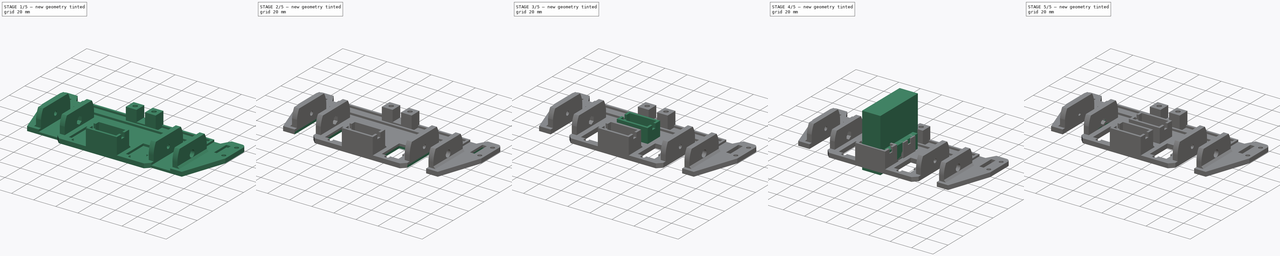
[diagram: build sequence overview — one tinted view per stage of 5, left to right]
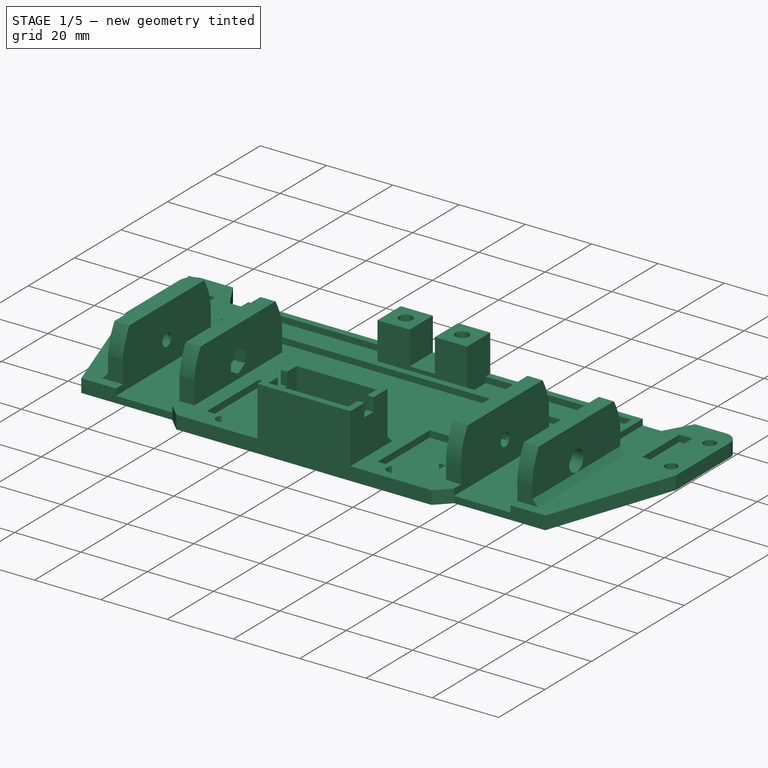
[diagram: stage 1 of 5 — iso view after this stage's code; geometry added in this stage tinted green]
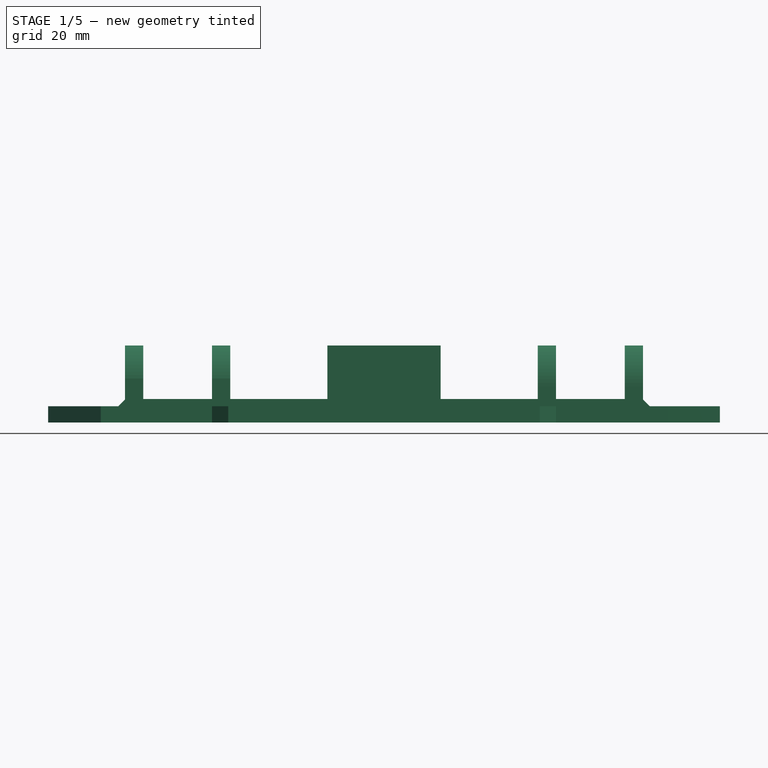
[diagram: stage 1 of 5 — front view after this stage's code; geometry added in this stage tinted green]
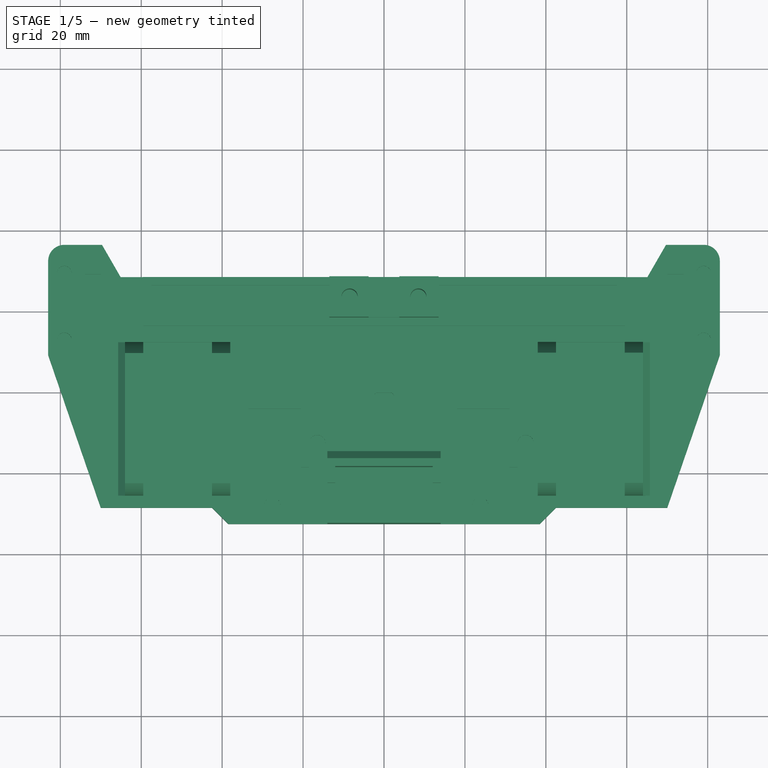
[diagram: stage 1 of 5 — top view after this stage's code; geometry added in this stage tinted green]
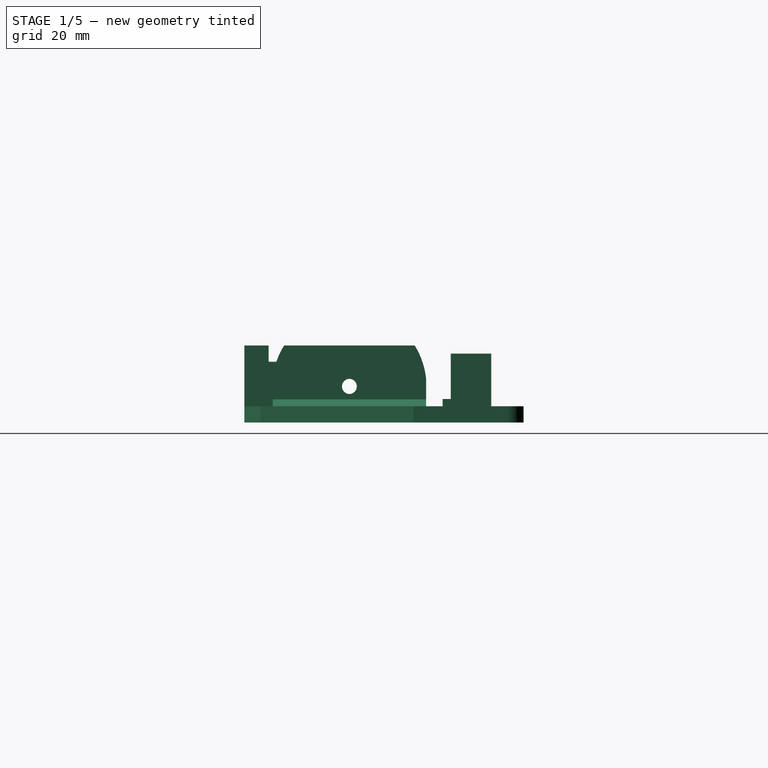
[diagram: stage 1 of 5 — right view after this stage's code; geometry added in this stage tinted green]
FCSTD DOCUMENT  (FreeCAD 0.14R3702 (Git))
Label: frame-front
License: CC-BY 3.0
LicenseURL: http://creativecommons.org/licenses/by/3.0/
objects: Sketcher::SketchObject×17, PartDesign::Pocket×12, Part::Feature×7, PartDesign::Pad×5, App::DocumentObjectGroup×4, Part::FeaturePython×2, Part::Chamfer×2, Part::Box×1, Part::Cut×1, Part::MultiFuse×1
note: 65 computed .brp shape members not serialized (recipe doc carries the construction recipe); baked Part::Feature solids carry a one-line shape summary decoded from their .brp

FEATURE [Part::Feature] Mirrored  label="wheel-reinforcement-003"
  shape: bbox 166 x 65 x 17 mm, 143 faces (baked)
FEATURE [Sketcher::SketchObject] Sketch  label="main-body-sketch"
  sketch-geometry (17):
    g0: LineSegment StartX=65.0812 StartY=28.5 StartZ=0 EndX=-65.0812 EndY=28.5 EndZ=0
    g1: LineSegment StartX=-65.0812 StartY=28.5 StartZ=0 EndX=-69.7 EndY=36.5 EndZ=0
    g2: LineSegment StartX=-69.7 StartY=36.5 StartZ=0 EndX=-79 EndY=36.5 EndZ=0
    g3: LineSegment StartX=-83 StartY=32.5 StartZ=0 EndX=-83 EndY=9.25474 EndZ=0
    g4: LineSegment StartX=-83 StartY=9.25474 StartZ=0 EndX=-70 EndY=-28.5 EndZ=0
    g5: LineSegment StartX=70 StartY=-28.5 StartZ=0 EndX=83 EndY=9.25474 EndZ=0
    g6: LineSegment StartX=83 StartY=9.25474 StartZ=0 EndX=83 EndY=32.5 EndZ=0
    g7: LineSegment StartX=79 StartY=36.5 StartZ=0 EndX=69.7 EndY=36.5 EndZ=0
    g8: LineSegment StartX=69.7 StartY=36.5 StartZ=0 EndX=65.0812 EndY=28.5 EndZ=0
    g9: LineSegment [constr] StartX=0 StartY=28.5 StartZ=0 EndX=0 EndY=-32.5 EndZ=0
    g10: ArcOfCircle CenterX=-79 CenterY=32.5 CenterZ=0 NormalX=0 NormalY=0 NormalZ=1 Radius=4 StartAngle=1.5708 EndAngle=3.14159
    g11: ArcOfCircle CenterX=79 CenterY=32.5 CenterZ=0 NormalX=0 NormalY=0 NormalZ=1 Radius=4 StartAngle=0 EndAngle=1.5708
    g12: LineSegment StartX=-42.5 StartY=-28.5 StartZ=0 EndX=-38.5 EndY=-32.5 EndZ=0
    g13: LineSegment StartX=-38.5 StartY=-32.5 StartZ=0 EndX=38.5 EndY=-32.5 EndZ=0
    g14: LineSegment StartX=38.5 StartY=-32.5 StartZ=0 EndX=42.5 EndY=-28.5 EndZ=0
    g15: LineSegment StartX=42.5 StartY=-28.5 StartZ=0 EndX=70 EndY=-28.5 EndZ=0
    g16: LineSegment StartX=-42.5 StartY=-28.5 StartZ=0 EndX=-70 EndY=-28.5 EndZ=0
  constraints (47):
    c: Horizontal(g0)
    c: Coincident(g0,g1)
    c: Coincident(g1,g2)
    c: Horizontal(g2)
    c: Vertical(g3)
    c: Coincident(g3,g4)
    c: Coincident(g5,g6)
    c: Vertical(g6)
    c: Horizontal(g7)
    c: Coincident(g7,g8)
    c: Coincident(g8,g0)
    c: Symmetric(g0,g0,g-2)
    c: Vertical(g9)
    c: PointOnObject(g9,g-2)
    c: PointOnObject(g9,g0)
    c: Angle(g0,g1) = 2.0944
    c: Symmetric(g1,g7,g-2)
    c: Symmetric(g3,g5,g-2)
    c: Symmetric(g4,g5,g-2)
    c: DistanceY(g9) = -61
    c: DistanceY(g0,g7) = 8
    c: DistanceX(g3,g5) = 166
    c: DistanceX(g3,g1) = 13.3
    c: Tangent(g2,g10)
    c: Tangent(g3,g10)
    c: Radius(g10) = 4
    c: Tangent(g6,g11)
    c: Tangent(g7,g11)
    c: Symmetric(g11,g10,g-2)
    c: DistanceY(g-1,g9) = 28.5
    c: Coincident(g12,g13)
    c: Coincident(g13,g14)
    c: Coincident(g14,g15)
    c: Coincident(g16,g12)
    c: Horizontal(g16)
    c: Horizontal(g13)
    c: Horizontal(g15)
    c: Angle(g16,g4) = 1.90241
    c: Coincident(g16,g4)
    c: DistanceY(g12,g12) = 4
    c: Coincident(g15,g5)
    c: Symmetric(g12,g14,g-2)
    c: Symmetric(g12,g13,g-2)
    c: PointOnObject(g9,g13)
    c: DistanceX(g4,g5) = 140
    c: Angle(g16,g12) = 2.35619
    c: DistanceX(g-1,g12) = -42.5
FEATURE [PartDesign::Pad] Pad  label="main-body"
  Length = 2
  Length2 = 100
  Reversed = true
  Sketch = -> Sketch
  Type = 0
FEATURE [App::DocumentObjectGroup] Group  label="base"
  Group = -> [Pad,Pocket,Pocket001,Pocket002,Pocket003,Pocket011002]
FEATURE [Part::Feature] Pocket011002001  label="base-part"
  shape: bbox 166 x 69 x 2 mm, 64 faces (baked)
FEATURE [Part::MultiFuse] Fusion  label="frame-front-main"
  Shapes = -> [Pocket011001,Pocket009001,Clone001,Cut001,Pad002001,Pocket011002001]
FEATURE [Part::Chamfer] Chamfer  label="chamfer-wheels-shaft-holder-1.7mm"
  Base = -> Fusion
  Edges = 2 edges r=1.7: [Edge21,Edge43]
FEATURE [Part::Chamfer] Chamfer001  label="chamfer-miniservo-holder-2mm"
  Base = -> Chamfer
  Edges = 1 edges r=2: [Edge20]
FEATURE [Part::FeaturePython] Clone002  label="Clone of chamfer-miniservo-holder-2mm"  # Draft clone (typed FeaturePython)
  Objects = -> [Chamfer001]
  Placement = pos=(0,0,2) rot=(0,0,1;0rad)
  Scale = (1,1,1)
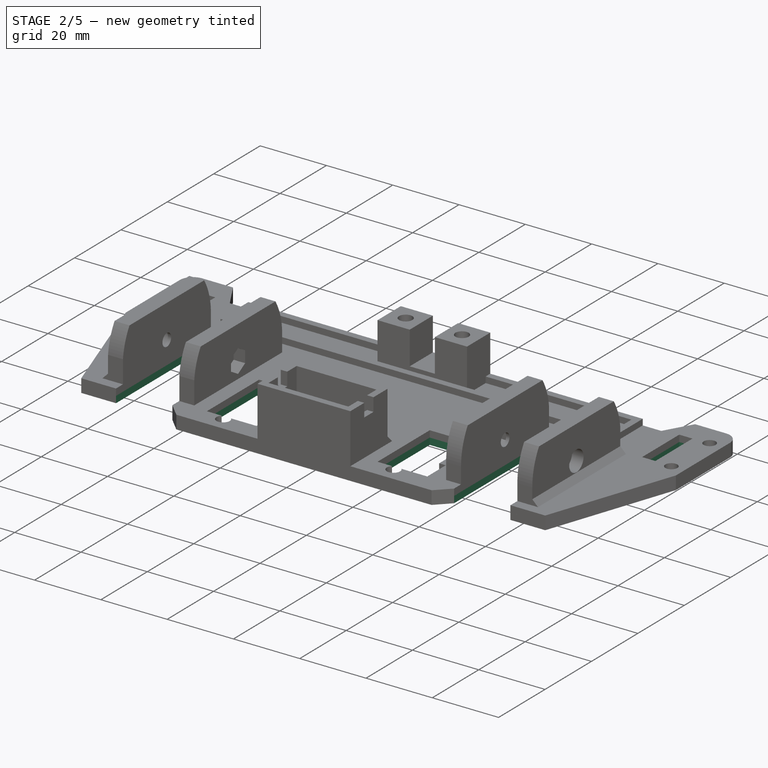
[diagram: stage 2 of 5 — iso view after this stage's code; geometry added in this stage tinted green]
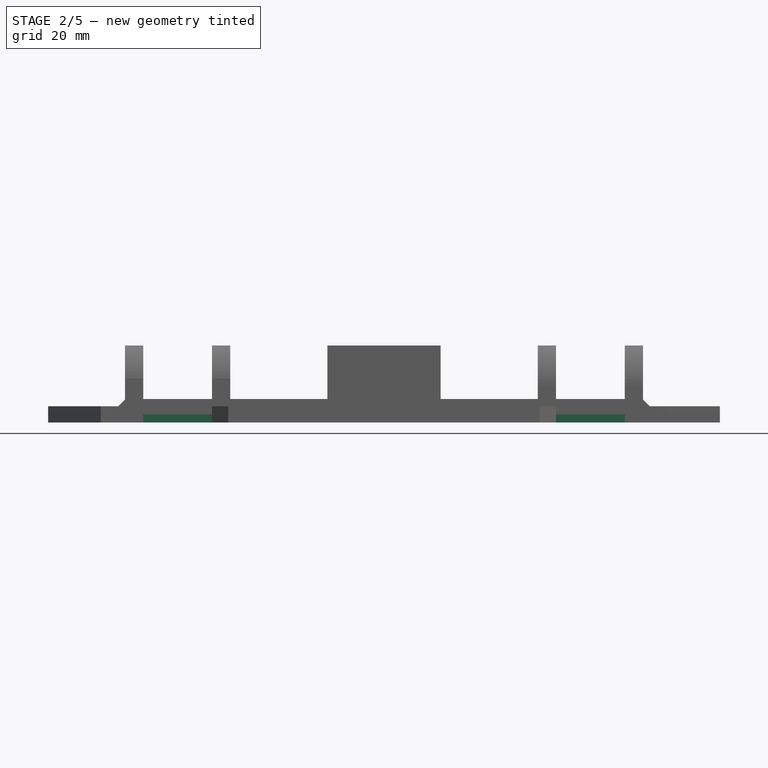
[diagram: stage 2 of 5 — front view after this stage's code; geometry added in this stage tinted green]
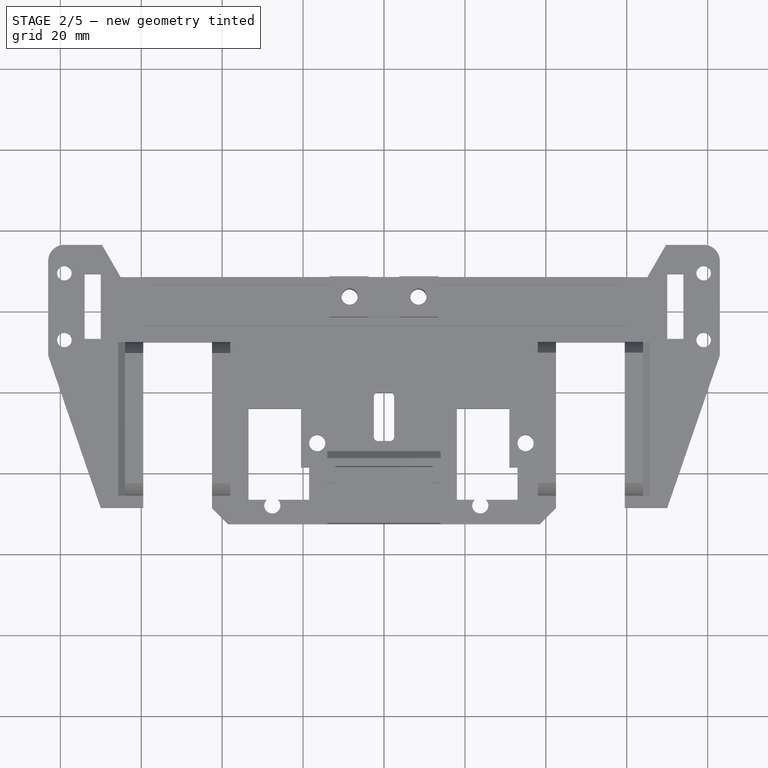
[diagram: stage 2 of 5 — top view after this stage's code; geometry added in this stage tinted green]
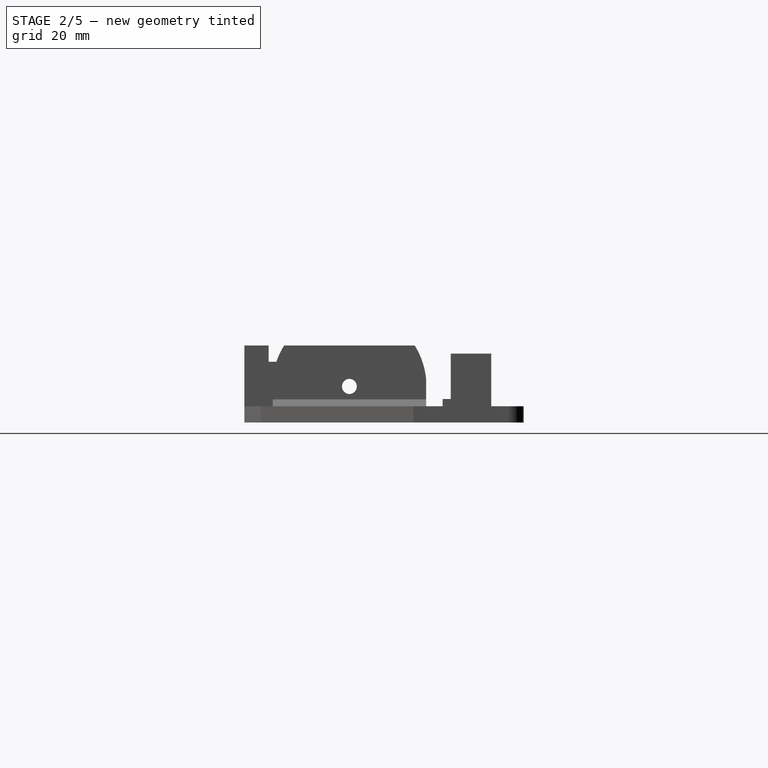
[diagram: stage 2 of 5 — right view after this stage's code; geometry added in this stage tinted green]
FEATURE [Sketcher::SketchObject] Sketch001  label="ldr-sensors-cutout-sketch"
  Support = -> Pad [Face17]
  sketch-geometry (15):
    g0: LineSegment StartX=-74 StartY=29.25 StartZ=0 EndX=-70 EndY=29.25 EndZ=0
    g1: LineSegment StartX=-70 StartY=29.25 StartZ=0 EndX=-70 EndY=13.25 EndZ=0
    g2: LineSegment StartX=-70 StartY=13.25 StartZ=0 EndX=-74 EndY=13.25 EndZ=0
    g3: LineSegment StartX=-74 StartY=13.25 StartZ=0 EndX=-74 EndY=29.25 EndZ=0
    g4: Circle CenterX=-79 CenterY=29.5 CenterZ=0 NormalX=0 NormalY=0 NormalZ=1 Radius=1.8
    g5: Circle CenterX=-79 CenterY=13 CenterZ=0 NormalX=0 NormalY=0 NormalZ=1 Radius=1.8
    g6: LineSegment [constr] StartX=-79 StartY=29.5 StartZ=0 EndX=-79 EndY=13 EndZ=0
    g7: LineSegment [constr] StartX=-79 StartY=21.25 StartZ=0 EndX=-70 EndY=21.25 EndZ=0
    g8: LineSegment StartX=70 StartY=29.25 StartZ=0 EndX=74 EndY=29.25 EndZ=0
    g9: LineSegment StartX=74 StartY=29.25 StartZ=0 EndX=74 EndY=13.25 EndZ=0
    g10: LineSegment StartX=74 StartY=13.25 StartZ=0 EndX=70 EndY=13.25 EndZ=0
    g11: LineSegment StartX=70 StartY=13.25 StartZ=0 EndX=70 EndY=29.25 EndZ=0
    g12: Circle CenterX=79 CenterY=29.5 CenterZ=0 NormalX=0 NormalY=0 NormalZ=1 Radius=1.8
    g13: Circle CenterX=79 CenterY=13 CenterZ=0 NormalX=0 NormalY=0 NormalZ=1 Radius=1.8
    g14: LineSegment [constr] StartX=79 StartY=29.5 StartZ=0 EndX=79 EndY=13 EndZ=0
  constraints (40):
    c: Coincident(g0,g1)
    c: Coincident(g1,g2)
    c: Coincident(g2,g3)
    c: Coincident(g3,g0)
    c: Horizontal(g0)
    c: Horizontal(g2)
    c: Vertical(g3)
    c: Vertical(g6)
    c: Coincident(g6,g5)
    c: Coincident(g6,g4)
    c: Equal(g5,g4)
    c: PointOnObject(g7,g6)
    c: Symmetric(g5,g4,g7)
    c: PointOnObject(g7,g1)
    c: Symmetric(g0,g1,g7)
    c: Radius(g4) = 1.8
    c: DistanceX(g-1,g5) = -79
    c: DistanceY(g-1,g5) = 13
    c: DistanceY(g6) = -16.5
    c: DistanceX(g4,g0) = 5
    c: DistanceX(g0) = 4
    c: DistanceY(g1) = -16
    c: Coincident(g8,g9)
    c: Coincident(g9,g10)
    c: Coincident(g10,g11)
    c: Coincident(g11,g8)
    c: Horizontal(g8)
    c: Horizontal(g10)
    c: Vertical(g9)
    c: Vertical(g11)
    c: Vertical(g14)
    c: Equal(g4,g12)
    c: Equal(g12,g13)
    c: Coincident(g14,g12)
    c: Coincident(g13,g14)
    c: Symmetric(g0,g8,g-2)
    c: Symmetric(g8,g0,g-2)
    c: Symmetric(g1,g10,g-2)
    c: Symmetric(g5,g13,g-2)
    c: Symmetric(g12,g4,g-2)
FEATURE [PartDesign::Pocket] Pocket  label="ldr-sensor-cutout"
  Length = 5
  Sketch = -> Sketch001
  Type = 1
FEATURE [Sketcher::SketchObject] Sketch002  label="ir-sensors-cutout-sketch"
  Support = -> Pocket [Face4]
  sketch-geometry (20):
    g0: LineSegment StartX=-33.5 StartY=-4 StartZ=0 EndX=-20.5 EndY=-4 EndZ=0
    g1: LineSegment StartX=-33.5 StartY=-26.5 StartZ=0 EndX=-33.5 EndY=-4 EndZ=0
    g2: LineSegment StartX=18 StartY=-4 StartZ=0 EndX=31 EndY=-4 EndZ=0
    g3: LineSegment StartX=22.3717 StartY=-26.5 StartZ=0 EndX=18 EndY=-26.5 EndZ=0
    g4: LineSegment StartX=18 StartY=-26.5 StartZ=0 EndX=18 EndY=-4 EndZ=0
    g5: ArcOfCircle CenterX=23.8 CenterY=-27.9 CenterZ=0 NormalX=0 NormalY=0 NormalZ=1 Radius=2 StartAngle=2.3662 EndAngle=7.05858
    g6: LineSegment StartX=25.2283 StartY=-26.5 StartZ=0 EndX=33 EndY=-26.5 EndZ=0
    g7: LineSegment StartX=31 StartY=-4 StartZ=0 EndX=31 EndY=-18.5 EndZ=0
    g8: LineSegment StartX=31 StartY=-18.5 StartZ=0 EndX=33 EndY=-18.5 EndZ=0
    g9: LineSegment StartX=33 StartY=-18.5 StartZ=0 EndX=33 EndY=-26.5 EndZ=0
    g10: ArcOfCircle CenterX=-27.6 CenterY=-27.9 CenterZ=0 NormalX=0 NormalY=0 NormalZ=1 Radius=2 StartAngle=2.3662 EndAngle=7.05858
    g11: LineSegment StartX=-33.5 StartY=-26.5 StartZ=0 EndX=-29.0283 EndY=-26.5 EndZ=0
    g12: LineSegment [constr] StartX=-27.6 StartY=-27.9 StartZ=0 EndX=23.8 EndY=-27.9 EndZ=0
    g13: LineSegment StartX=-20.5 StartY=-4 StartZ=0 EndX=-20.5 EndY=-18.5 EndZ=0
    g14: LineSegment StartX=-20.5 StartY=-18.5 StartZ=0 EndX=-18.5 EndY=-18.5 EndZ=0
    g15: LineSegment StartX=-18.5 StartY=-18.5 StartZ=0 EndX=-18.5 EndY=-26.5 EndZ=0
    g16: LineSegment StartX=-18.5 StartY=-26.5 StartZ=0 EndX=-26.1717 EndY=-26.5 EndZ=0
    g17: Circle CenterX=-16.5 CenterY=-12.5 CenterZ=0 NormalX=0 NormalY=0 NormalZ=1 Radius=2
    g18: LineSegment [constr] StartX=-16.5 StartY=-12.5 StartZ=0 EndX=35 EndY=-12.5 EndZ=0
    g19: Circle CenterX=35 CenterY=-12.5 CenterZ=0 NormalX=0 NormalY=0 NormalZ=1 Radius=2
  constraints (61):
    c: Coincident(g1,g0)
    c: Horizontal(g0)
    c: Vertical(g1)
    c: Coincident(g3,g4)
    c: Coincident(g4,g2)
    c: Horizontal(g2)
    c: Horizontal(g3)
    c: Vertical(g4)
    c: Horizontal(g6)
    c: Coincident(g5,g3)
    c: Coincident(g5,g6)
    c: PointOnObject(g5,g3)
    c: Radius(g5) = 2
    c: DistanceX(g-1,g2) = 18
    c: DistanceY(g4) = 22.5
    c: DistanceX(g2) = 13
    c: Vertical(g7)
    c: Coincident(g7,g8)
    c: Horizontal(g8)
    c: Coincident(g8,g9)
    c: Coincident(g9,g6)
    c: Vertical(g9)
    c: Coincident(g7,g2)
    c: DistanceY(g9) = -8
    c: DistanceX(g8) = 2
    c: DistanceX(g-1,g0) = -20.5
    c: Equal(g0,g2)
    c: Equal(g1,g4)
    c: DistanceY(g5,g3) = 1.4
    c: DistanceX(g5,g3) = -5.8
    c: PointOnObject(g10,g3)
    c: PointOnObject(g10,g3)
    c: Horizontal(g11)
    c: Coincident(g11,g1)
    c: Coincident(g11,g10)
    c: Horizontal(g12)
    c: Coincident(g12,g5)
    c: Coincident(g12,g10)
    c: Equal(g10,g5)
    c: DistanceX(g1,g10) = 5.9
    c: Vertical(g13)
    c: Coincident(g13,g14)
    c: Horizontal(g14)
    c: Coincident(g14,g15)
    c: Vertical(g15)
    c: Coincident(g15,g16)
    c: Horizontal(g16)
    c: Coincident(g13,g0)
    c: Equal(g13,g7)
    c: Equal(g14,g8)
    c: Equal(g15,g9)
    c: Coincident(g16,g10)
    c: Radius(g17) = 2
    c: DistanceX(g-1,g17) = -16.5
    c: Coincident(g18,g17)
    c: Horizontal(g18)
    c: Coincident(g18,g19)
    c: DistanceX(g2,g18) = 17
    c: Equal(g17,g19)
    c: DistanceY(g17,g0) = 8.5
    c: DistanceY(g-1,g0) = -4
FEATURE [PartDesign::Pocket] Pocket001  label="ir-sensors-cutout"
  Length = 5
  Sketch = -> Sketch002
  Type = 1
FEATURE [Sketcher::SketchObject] Sketch003  label="front-wheel-cutout-sketch"
  Support = -> Pocket001 [Face4]
  sketch-geometry (11):
    g0: LineSegment StartX=-59.5 StartY=12.4 StartZ=0 EndX=-42.5 EndY=12.4 EndZ=0
    g1: LineSegment StartX=-42.5 StartY=12.4 StartZ=0 EndX=-42.5 EndY=-28.5 EndZ=0
    g2: LineSegment [constr] StartX=-42.5 StartY=-28.5 StartZ=0 EndX=-59.5 EndY=-28.5 EndZ=0
    g3: LineSegment StartX=-59.5 StartY=-28.5 StartZ=0 EndX=-59.5 EndY=12.4 EndZ=0
    g4: LineSegment StartX=-42.5 StartY=-28.5 StartZ=0 EndX=-42.5 EndY=-31.5 EndZ=0
    g5: LineSegment StartX=-42.5 StartY=-31.5 StartZ=0 EndX=-59.5 EndY=-31.5 EndZ=0
    g6: LineSegment StartX=-59.5 StartY=-31.5 StartZ=0 EndX=-59.5 EndY=-28.5 EndZ=0
    g7: LineSegment StartX=42.5 StartY=12.4 StartZ=0 EndX=59.5 EndY=12.4 EndZ=0
    g8: LineSegment StartX=59.5 StartY=12.4 StartZ=0 EndX=59.5 EndY=-31.5 EndZ=0
    g9: LineSegment StartX=59.5 StartY=-31.5 StartZ=0 EndX=42.5 EndY=-31.5 EndZ=0
    g10: LineSegment StartX=42.5 StartY=-31.5 StartZ=0 EndX=42.5 EndY=12.4 EndZ=0
  constraints (31):
    c: Coincident(g0,g1)
    c: Coincident(g1,g2)
    c: Coincident(g2,g3)
    c: Coincident(g3,g0)
    c: Horizontal(g0)
    c: Horizontal(g2)
    c: Vertical(g1)
    c: Vertical(g3)
    c: DistanceX(g-1,g0) = -42.5
    c: DistanceY(g3) = 40.9
    c: DistanceX(g0) = 17
    c: DistanceY(g-1,g0) = 12.4
    c: Coincident(g4,g5)
    c: Coincident(g5,g6)
    c: Horizontal(g5)
    c: Vertical(g4)
    c: Vertical(g6)
    c: Coincident(g6,g2)
    c: Coincident(g1,g4)
    c: DistanceY(g4) = -3
    c: Coincident(g7,g8)
    c: Coincident(g8,g9)
    c: Coincident(g9,g10)
    c: Coincident(g10,g7)
    c: Horizontal(g7)
    c: Horizontal(g9)
    c: Vertical(g8)
    c: Vertical(g10)
    c: Symmetric(g0,g7,g-2)
    c: Symmetric(g4,g9,g-2)
    c: Symmetric(g8,g5,g-2)
FEATURE [PartDesign::Pocket] Pocket002  label="front-wheel-cutout"
  Length = 5
  Sketch = -> Sketch003
  Type = 1
FEATURE [Sketcher::SketchObject] Sketch004  label="attach-drills-sketch"
  Support = -> Pocket002 [Face3]
  sketch-geometry (2):
    g0: Circle CenterX=-8.5 CenterY=23.5 CenterZ=0 NormalX=0 NormalY=0 NormalZ=1 Radius=2
    g1: Circle CenterX=8.5 CenterY=23.5 CenterZ=0 NormalX=0 NormalY=0 NormalZ=1 Radius=2
  constraints (5):
    c: Radius(g0) = 2
    c: DistanceY(g-1,g0) = 23.5
    c: DistanceX(g-1,g0) = -8.5
    c: Equal(g0,g1)
    c: Symmetric(g1,g0,g-2)
FEATURE [PartDesign::Pocket] Pocket003  label="attach-drills"
  Length = 5
  Sketch = -> Sketch004
  Type = 1
FEATURE [App::DocumentObjectGroup] Group002  label="claw-servo-holder-src"
  Group = -> [Pad004,Pocket010,Pocket011]
FEATURE [Part::Feature] Pocket011001  label="claw-servo-holder"
  Placement = pos=(0,-24.5,0) rot=(0,0,1;0rad)
  shape: bbox 28 x 16 x 15 mm, 18 faces (baked)
FEATURE [App::DocumentObjectGroup] Group003  label="arrachment-block-src"
  Group = -> [Pad003,Pocket009]
FEATURE [Part::Feature] Pocket009001  label="attachment-block"
  Placement = pos=(0,23.5,0) rot=(1,0,0;1.5708rad)
  shape: bbox 27 x 10 x 13 mm, 12 faces (baked)
FEATURE [Part::Feature] Clone001  label="right-wheel-shaft-holder"
  Placement = pos=(-51,-13.1,0) rot=(0,0,1;3.14159rad)
  shape: bbox 26 x 37.9 x 15 mm, 27 faces, 2 solids (baked)
FEATURE [Part::Feature] Cut001  label="left-wheel-shaft-holder"
  Placement = pos=(51,0,0) rot=(0,0,1;0rad)
  shape: bbox 26 x 37.9 x 15 mm, 27 faces, 2 solids (baked)
FEATURE [Part::Feature] Pad002001  label="base-reinforcement-src001"
  Placement = pos=(0,22.5,0) rot=(0,0,1;0rad)
  shape: bbox 119 x 12 x 1.8 mm, 10 faces (baked)
FEATURE [Sketcher::SketchObject] Sketch016  label="slot-wires-sketch"
  Support = -> Pocket003 [Face3]
  sketch-geometry (8):
    g0: LineSegment StartX=-1.5 StartY=0 StartZ=0 EndX=1.5 EndY=0 EndZ=0
    g1: LineSegment StartX=2.5 StartY=-1 StartZ=0 EndX=2.5 EndY=-11 EndZ=0
    g2: LineSegment StartX=1.5 StartY=-12 StartZ=0 EndX=-1.5 EndY=-12 EndZ=0
    g3: LineSegment StartX=-2.5 StartY=-11 StartZ=0 EndX=-2.5 EndY=-1 EndZ=0
    g4: ArcOfCircle CenterX=-1.5 CenterY=-1 CenterZ=0 NormalX=0 NormalY=0 NormalZ=1 Radius=1 StartAngle=1.5708 EndAngle=3.14159
    g5: ArcOfCircle CenterX=1.5 CenterY=-1 CenterZ=0 NormalX=0 NormalY=0 NormalZ=1 Radius=1 StartAngle=0 EndAngle=1.5708
    g6: ArcOfCircle CenterX=-1.5 CenterY=-11 CenterZ=0 NormalX=0 NormalY=0 NormalZ=1 Radius=1 StartAngle=3.14159 EndAngle=4.71239
    g7: ArcOfCircle CenterX=1.5 CenterY=-11 CenterZ=0 NormalX=0 NormalY=0 NormalZ=1 Radius=1 StartAngle=4.71239 EndAngle=6.28319
  constraints (20):
    c: Horizontal(g0)
    c: Horizontal(g2)
    c: Vertical(g1)
    c: Vertical(g3)
    c: Tangent(g0,g4)
    c: Tangent(g3,g4)
    c: Tangent(g0,g5)
    c: Tangent(g1,g5)
    c: Tangent(g2,g6)
    c: Tangent(g3,g6)
    c: Tangent(g1,g7)
    c: Tangent(g2,g7)
    c: Equal(g7,g6)
    c: Equal(g6,g4)
    c: Equal(g4,g5)
    c: Radius(g4) = 1
    c: DistanceX(g3,g1) = 5
    c: DistanceY(g0,g2) = -12
    c: PointOnObject(g0,g-1)
    c: Symmetric(g4,g5,g-2)
FEATURE [PartDesign::Pocket] Pocket011002  label="slot-wires"
  Length = 5
  Sketch = -> Sketch016
  Type = 1
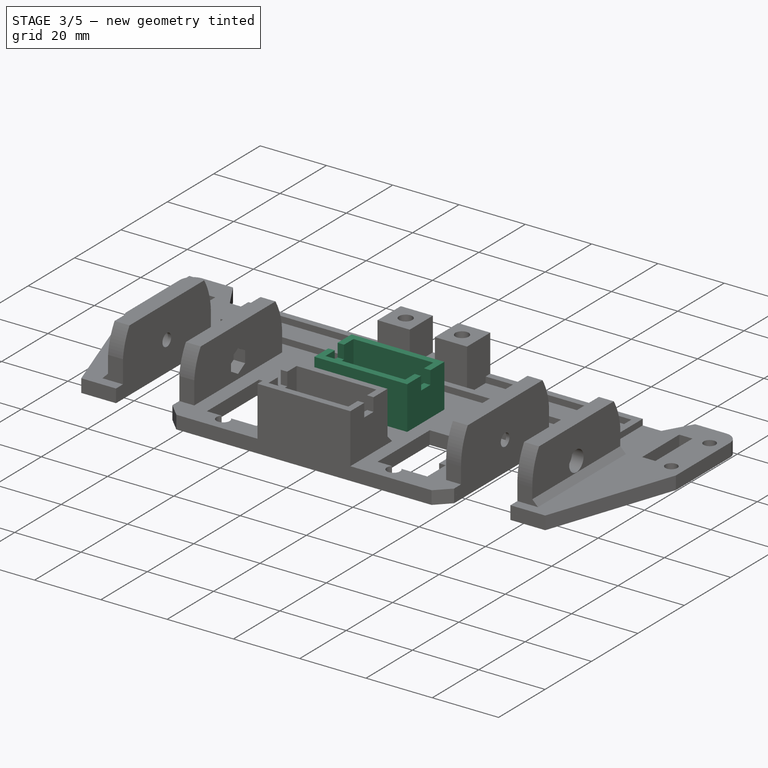
[diagram: stage 3 of 5 — iso view after this stage's code; geometry added in this stage tinted green]
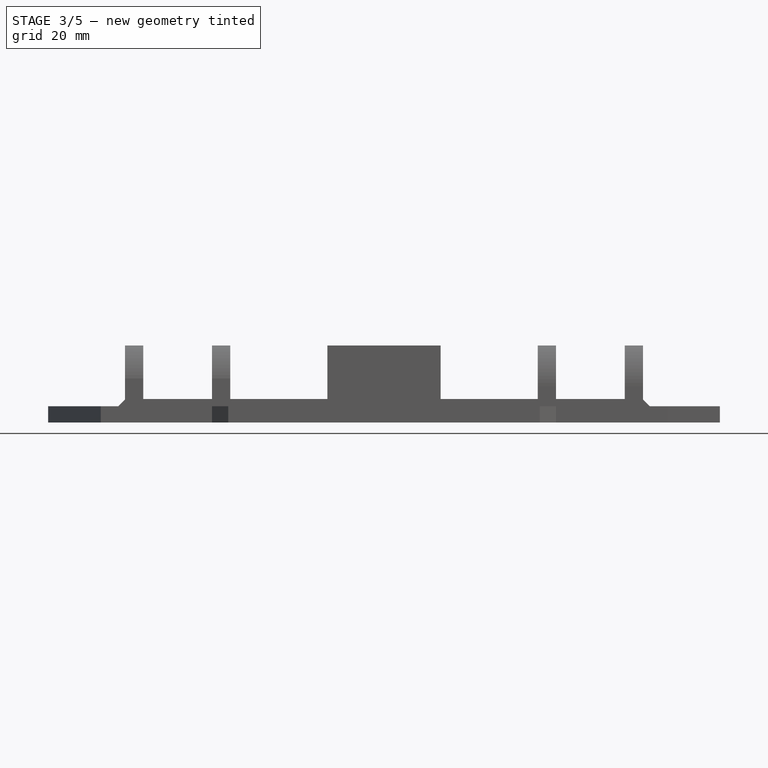
[diagram: stage 3 of 5 — front view after this stage's code; geometry added in this stage tinted green]
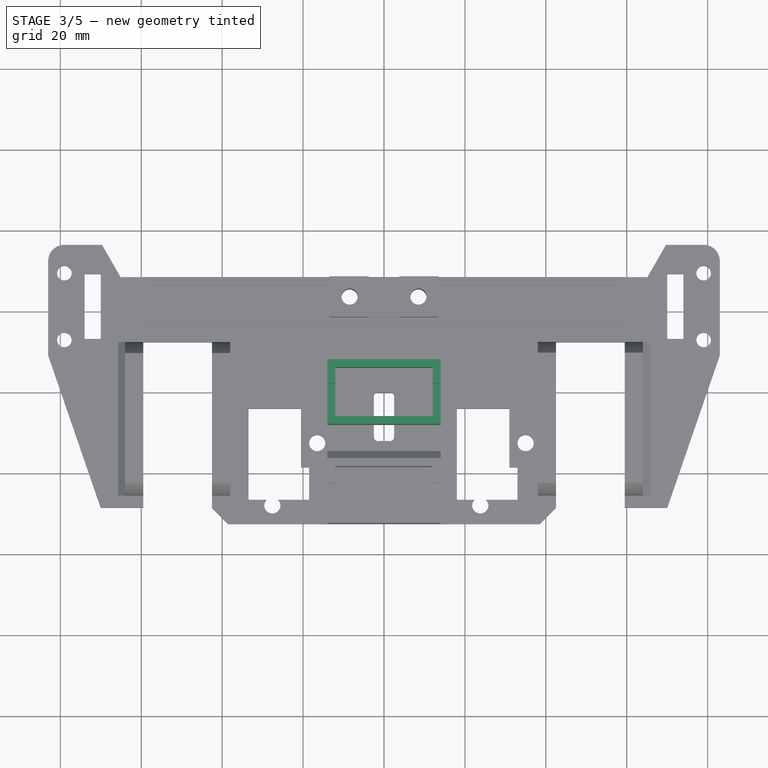
[diagram: stage 3 of 5 — top view after this stage's code; geometry added in this stage tinted green]
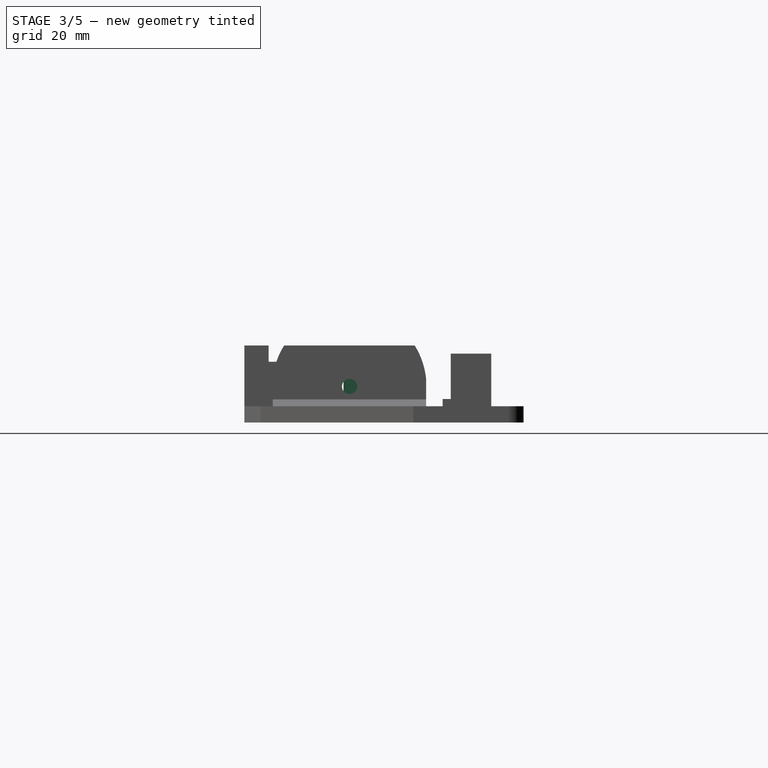
[diagram: stage 3 of 5 — right view after this stage's code; geometry added in this stage tinted green]
FEATURE [Sketcher::SketchObject] Sketch011  label="rear-attachment-block-sketch"
  Placement = pos=(0,23.5,0) rot=(1,0,0;1.5708rad)
  sketch-geometry (8):
    g0: LineSegment StartX=13.5 StartY=0 StartZ=0 EndX=-13.5 EndY=0 EndZ=0
    g1: LineSegment StartX=-13.5 StartY=0 StartZ=0 EndX=-13.5 EndY=13 EndZ=0
    g2: LineSegment StartX=-13.5 StartY=13 StartZ=0 EndX=-3.8 EndY=13 EndZ=0
    g3: LineSegment StartX=-3.8 StartY=13 StartZ=0 EndX=-3.8 EndY=3 EndZ=0
    g4: LineSegment StartX=-3.8 StartY=3 StartZ=0 EndX=3.8 EndY=3 EndZ=0
    g5: LineSegment StartX=3.8 StartY=3 StartZ=0 EndX=3.8 EndY=13 EndZ=0
    g6: LineSegment StartX=3.8 StartY=13 StartZ=0 EndX=13.5 EndY=13 EndZ=0
    g7: LineSegment StartX=13.5 StartY=13 StartZ=0 EndX=13.5 EndY=0 EndZ=0
  constraints (23):
    c: Horizontal(g0)
    c: Coincident(g0,g1)
    c: Vertical(g1)
    c: Coincident(g1,g2)
    c: Horizontal(g2)
    c: Coincident(g2,g3)
    c: Vertical(g3)
    c: Coincident(g3,g4)
    c: Horizontal(g4)
    c: Coincident(g4,g5)
    c: Vertical(g5)
    c: Coincident(g5,g6)
    c: Horizontal(g6)
    c: Coincident(g6,g7)
    c: Coincident(g7,g0)
    c: Vertical(g7)
    c: DistanceY(g1) = 13
    c: DistanceX(g2) = 9.7
    c: DistanceX(g6,g1) = -27
    c: DistanceY(g0,g4) = 3
    c: Symmetric(g5,g2,g-2)
    c: Symmetric(g1,g6,g-2)
    c: PointOnObject(g0,g-1)
FEATURE [PartDesign::Pad] Pad003  label="rear-attachment-block"
  Length = 10
  Length2 = 100
  Midplane = true
  Placement = pos=(0,23.5,0) rot=(1,0,0;1.5708rad)
  Sketch = -> Sketch011
  Type = 0
FEATURE [Sketcher::SketchObject] Sketch012  label="attachment-block-drills-sketch"
  Placement = pos=(0,23.5,13) rot=(0,0,1;3.14159rad)
  Support = -> Pad003 [Face3]
  sketch-geometry (2):
    g0: Circle CenterX=-8.5 CenterY=0 CenterZ=0 NormalX=0 NormalY=0 NormalZ=1 Radius=2
    g1: Circle CenterX=8.5 CenterY=0 CenterZ=0 NormalX=0 NormalY=0 NormalZ=1 Radius=2
  constraints (5):
    c: PointOnObject(g0,g-1)
    c: Radius(g0) = 2
    c: DistanceX(g-1,g0) = -8.5
    c: Symmetric(g0,g1,g-2)
    c: Equal(g1,g0)
FEATURE [PartDesign::Pocket] Pocket009  label="attachment-block-drills"
  Length = 5
  Placement = pos=(0,23.5,0) rot=(1,0,0;1.5708rad)
  Sketch = -> Sketch012
  Type = 1
FEATURE [App::DocumentObjectGroup] Group001  label="wheel-shaft-holder-src"
  Group = -> [Cut,Clone,Pocket007,Pocket006,Pocket005,Pad001]
FEATURE [Sketcher::SketchObject] Sketch013  label="claw-servo-holder-main-sketch"
  sketch-geometry (8):
    g0: LineSegment StartX=-14 StartY=8 StartZ=0 EndX=14 EndY=8 EndZ=0
    g1: LineSegment StartX=14 StartY=8 StartZ=0 EndX=14 EndY=-8 EndZ=0
    g2: LineSegment StartX=14 StartY=-8 StartZ=0 EndX=-14 EndY=-8 EndZ=0
    g3: LineSegment StartX=-14 StartY=-8 StartZ=0 EndX=-14 EndY=8 EndZ=0
    g4: LineSegment StartX=-12.05 StartY=6.05 StartZ=0 EndX=12.05 EndY=6.05 EndZ=0
    g5: LineSegment StartX=12.05 StartY=6.05 StartZ=0 EndX=12.05 EndY=-6.05 EndZ=0
    g6: LineSegment StartX=12.05 StartY=-6.05 StartZ=0 EndX=-12.05 EndY=-6.05 EndZ=0
    g7: LineSegment StartX=-12.05 StartY=-6.05 StartZ=0 EndX=-12.05 EndY=6.05 EndZ=0
  constraints (22):
    c: Coincident(g0,g1)
    c: Coincident(g1,g2)
    c: Coincident(g2,g3)
    c: Coincident(g3,g0)
    c: Horizontal(g0)
    c: Horizontal(g2)
    c: Vertical(g1)
    c: Vertical(g3)
    c: Symmetric(g0,g1,g-1)
    c: Coincident(g4,g5)
    c: Coincident(g5,g6)
    c: Coincident(g6,g7)
    c: Coincident(g7,g4)
    c: Horizontal(g4)
    c: Horizontal(g6)
    c: Vertical(g5)
    c: Vertical(g7)
    c: Symmetric(g5,g4,g-1)
    c: DistanceX(g0) = 28
    c: DistanceY(g1) = -16
    c: DistanceX(g4) = 24.1
    c: DistanceY(g7) = 12.1
FEATURE [PartDesign::Pad] Pad004  label="claw-servo-holder-main"
  Length = 15
  Length2 = 100
  Sketch = -> Sketch013
  Type = 0
FEATURE [Sketcher::SketchObject] Sketch014  label="claw-servo-holder-cutout-1-sketch"
  Placement = pos=(0,0,15) rot=(0,0,1;0rad)
  Support = -> Pad004 [Face10]
  sketch-geometry (4):
    g0: LineSegment StartX=-15 StartY=2 StartZ=0 EndX=15 EndY=2 EndZ=0
    g1: LineSegment StartX=15 StartY=2 StartZ=0 EndX=15 EndY=-2 EndZ=0
    g2: LineSegment StartX=15 StartY=-2 StartZ=0 EndX=-15 EndY=-2 EndZ=0
    g3: LineSegment StartX=-15 StartY=-2 StartZ=0 EndX=-15 EndY=2 EndZ=0
  constraints (11):
    c: Coincident(g0,g1)
    c: Coincident(g1,g2)
    c: Coincident(g2,g3)
    c: Coincident(g3,g0)
    c: Horizontal(g0)
    c: Horizontal(g2)
    c: Vertical(g1)
    c: Vertical(g3)
    c: Symmetric(g0,g1,g-1)
    c: DistanceY(g3) = 4
    c: DistanceX(g0) = 30
FEATURE [PartDesign::Pocket] Pocket010  label="claw-servo-holder-cutout-1"
  Length = 4
  Sketch = -> Sketch014
  Type = 0
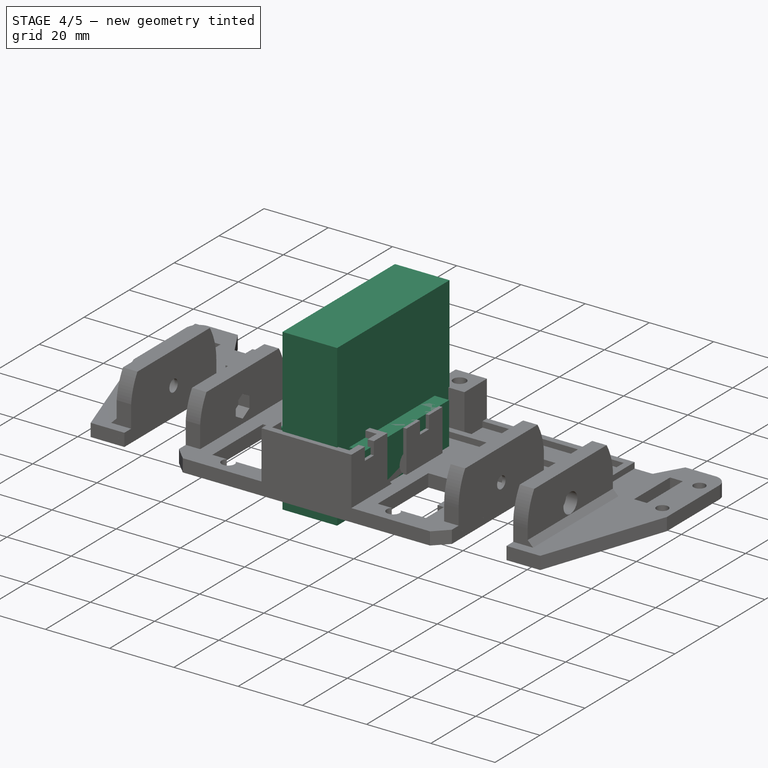
[diagram: stage 4 of 5 — iso view after this stage's code; geometry added in this stage tinted green]
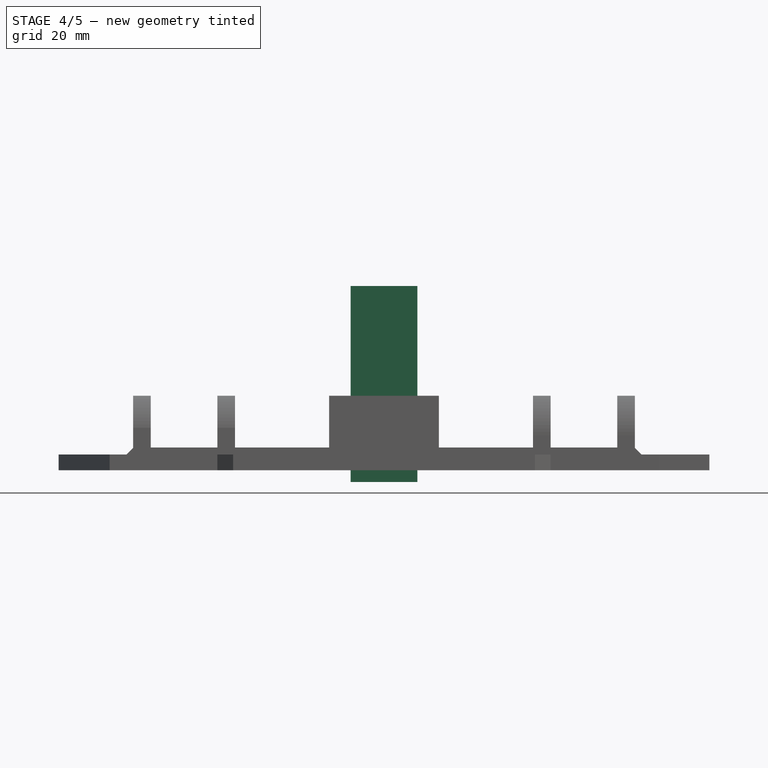
[diagram: stage 4 of 5 — front view after this stage's code; geometry added in this stage tinted green]
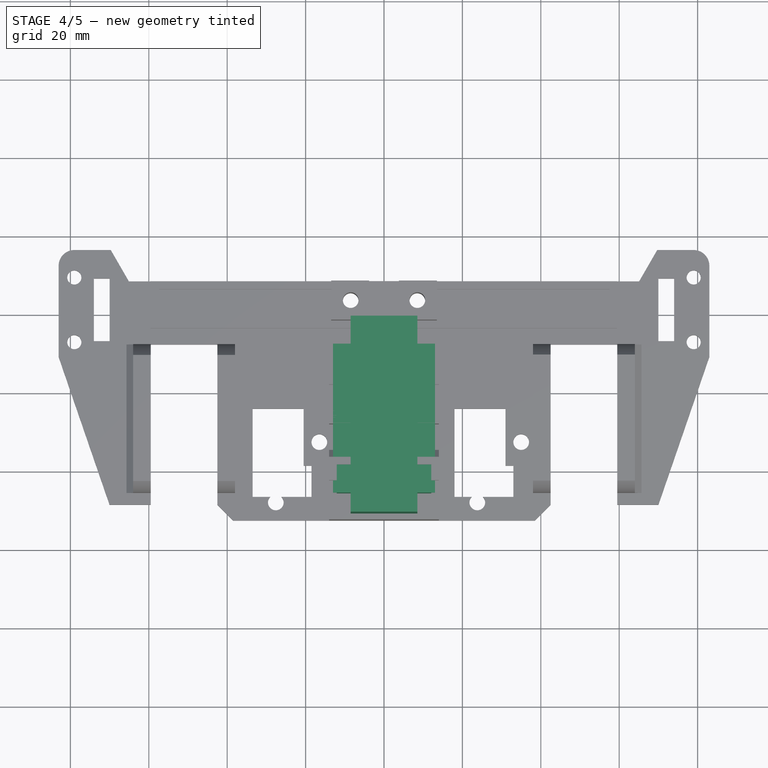
[diagram: stage 4 of 5 — top view after this stage's code; geometry added in this stage tinted green]
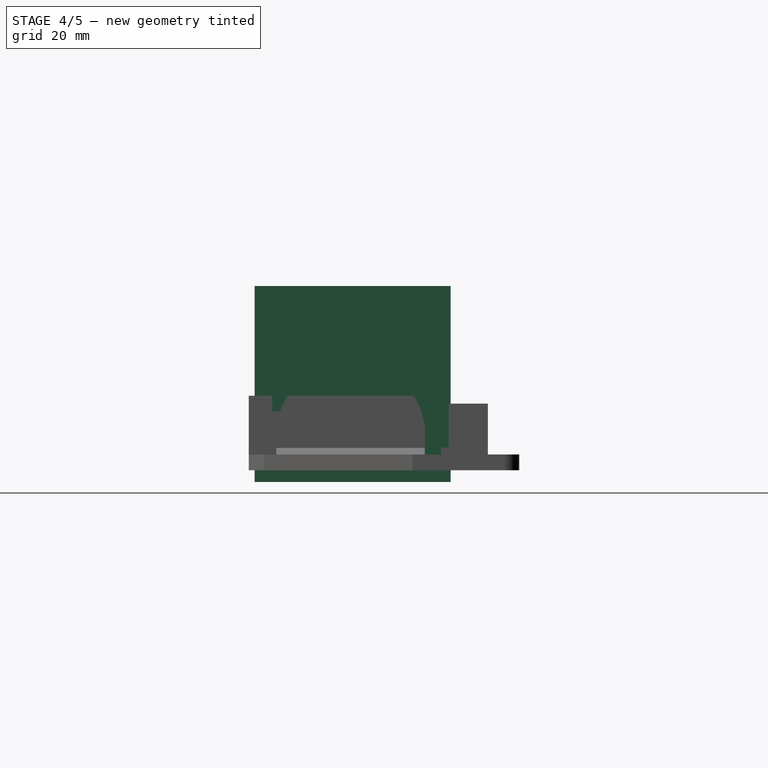
[diagram: stage 4 of 5 — right view after this stage's code; geometry added in this stage tinted green]
FEATURE [Sketcher::SketchObject] Sketch005  label="front-wheels-base-sketch"
  sketch-geometry (4):
    g0: LineSegment StartX=-13 StartY=12.4 StartZ=0 EndX=13 EndY=12.4 EndZ=0
    g1: LineSegment StartX=13 StartY=12.4 StartZ=0 EndX=13 EndY=-25.6 EndZ=0
    g2: LineSegment StartX=13 StartY=-25.6 StartZ=0 EndX=-13 EndY=-25.6 EndZ=0
    g3: LineSegment StartX=-13 StartY=-25.6 StartZ=0 EndX=-13 EndY=12.4 EndZ=0
  constraints (12):
    c: Coincident(g0,g1)
    c: Coincident(g1,g2)
    c: Coincident(g2,g3)
    c: Coincident(g3,g0)
    c: Horizontal(g0)
    c: Horizontal(g2)
    c: Vertical(g1)
    c: Vertical(g3)
    c: DistanceY(g-1,g0) = 12.4
    c: DistanceY(g3) = 38
    c: DistanceX(g0) = 26
    c: Symmetric(g0,g0,g-2)
FEATURE [PartDesign::Pad] Pad001  label="front-wheels-base"
  Length = 15
  Length2 = 100
  Sketch = -> Sketch005
  Type = 0
FEATURE [Sketcher::SketchObject] Sketch006  label="front-wheels-axle-sketch"
  Placement = pos=(13,0,0) rot=(0.57735,0.57735,0.57735;2.0944rad)
  Support = -> Pad001 [Face2]
  sketch-geometry (1):
    g0: Circle CenterX=-6.5 CenterY=4.9 CenterZ=0 NormalX=0 NormalY=0 NormalZ=1 Radius=1.88
  constraints (3):
    c: DistanceX(g-1,g0) = -6.5
    c: DistanceY(g-1,g0) = 4.9
    c: Radius(g0) = 1.88
FEATURE [PartDesign::Pocket] Pocket005  label="front-wheels-axle"
  Length = 5
  Sketch = -> Sketch006
  Type = 1
FEATURE [Sketcher::SketchObject] Sketch007  label="wheel-bolt-cap-cutout-sketch-1"
  Placement = pos=(13,0,0) rot=(0.57735,0.57735,0.57735;2.0944rad)
  Support = -> Pocket005 [Face3]
  sketch-geometry (1):
    g0: Circle CenterX=-6.5 CenterY=4.9 CenterZ=0 NormalX=0 NormalY=0 NormalZ=1 Radius=3.1
  constraints (1):
    c: Radius(g0) = 3.1
FEATURE [PartDesign::Pocket] Pocket006  label="wheel-bolt-cap-cutout"
  Length = 3.5
  Sketch = -> Sketch007
  Type = 0
FEATURE [Part::Box] Box  label="Cube"
  Height = 50
  Length = 17
  Placement = pos=(-8.5,-31,-5) rot=(0,0,1;0rad)
  Width = 50
FEATURE [Sketcher::SketchObject] Sketch015  label="claw-servo-holder-cutout-2-sketch"
  Placement = pos=(-14,0,0) rot=(0.57735,-0.57735,-0.57735;2.0944rad)
  Support = -> Pocket010 [Face2]
  sketch-geometry (4):
    g0: LineSegment StartX=-6.05 StartY=5 StartZ=0 EndX=6.05 EndY=5 EndZ=0
    g1: LineSegment StartX=6.05 StartY=5 StartZ=0 EndX=6.05 EndY=0 EndZ=0
    g2: LineSegment StartX=6.05 StartY=0 StartZ=0 EndX=-6.05 EndY=0 EndZ=0
    g3: LineSegment StartX=-6.05 StartY=0 StartZ=0 EndX=-6.05 EndY=5 EndZ=0
  constraints (12):
    c: Coincident(g0,g1)
    c: Coincident(g1,g2)
    c: Coincident(g2,g3)
    c: Coincident(g3,g0)
    c: Horizontal(g0)
    c: Horizontal(g2)
    c: Vertical(g1)
    c: Vertical(g3)
    c: PointOnObject(g1,g-1)
    c: Symmetric(g0,g0,g-2)
    c: DistanceX(g0) = 12.1
    c: DistanceY(g1) = -5
FEATURE [PartDesign::Pocket] Pocket011  label="claw-servo-holder-cutout-2"
  Length = 5
  Sketch = -> Sketch015
  Type = 0
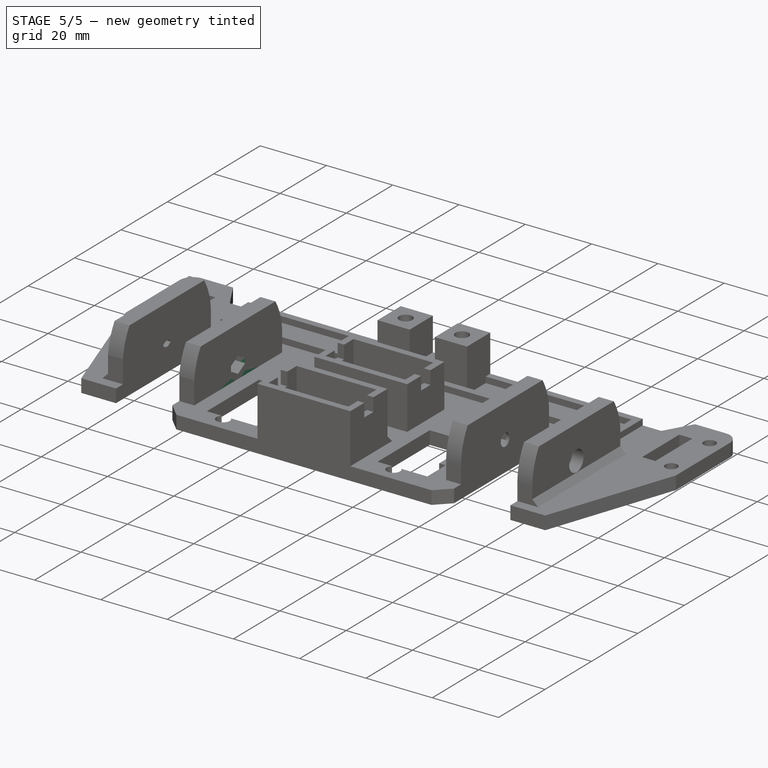
[diagram: stage 5 of 5 — iso view after this stage's code; geometry added in this stage tinted green]
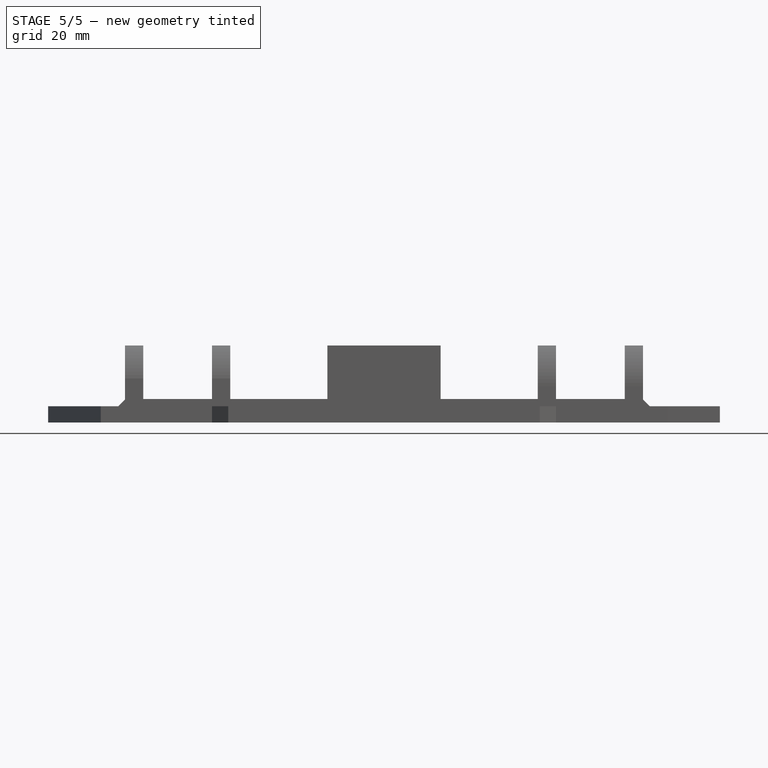
[diagram: stage 5 of 5 — front view after this stage's code; geometry added in this stage tinted green]
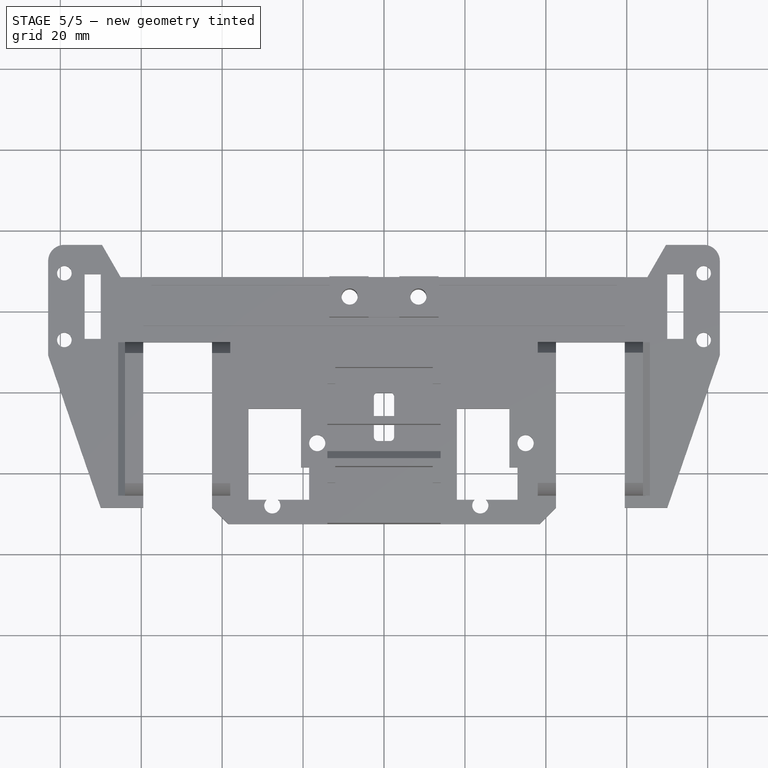
[diagram: stage 5 of 5 — top view after this stage's code; geometry added in this stage tinted green]
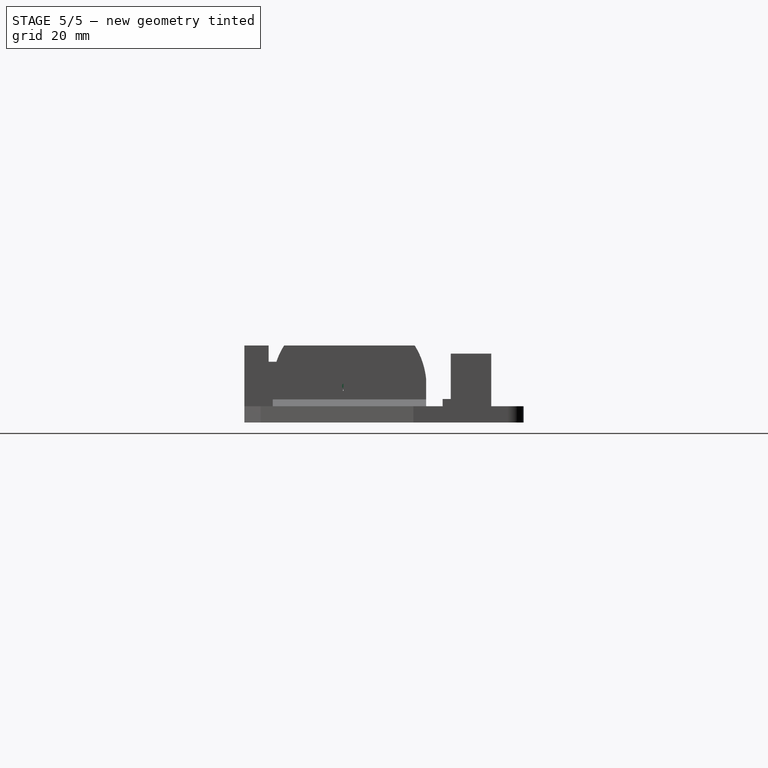
[diagram: stage 5 of 5 — right view after this stage's code; geometry added in this stage tinted green]
FEATURE [Sketcher::SketchObject] Sketch008  label="wheel-hex-nut-cutout-1-sketch"
  ExternalGeometry = -> [Pocket006]
  Placement = pos=(-13,0,0) rot=(0.57735,-0.57735,-0.57735;2.0944rad)
  Support = -> Pocket006 [Face2]
  sketch-geometry (9):
    g0: LineSegment [constr] StartX=6.5 StartY=8.42184 StartZ=0 EndX=6.5 EndY=4.9 EndZ=0
    g1: LineSegment [constr] StartX=3.45 StartY=4.9 StartZ=0 EndX=6.5 EndY=4.9 EndZ=0
    g2: LineSegment StartX=6.5 StartY=8.42184 StartZ=0 EndX=3.45 EndY=6.66092 EndZ=0
    g3: LineSegment StartX=3.45 StartY=6.66092 StartZ=0 EndX=3.45 EndY=3.13908 EndZ=0
    g4: LineSegment [constr] StartX=3.45 StartY=6.66092 StartZ=0 EndX=6.5 EndY=4.9 EndZ=0
    g5: LineSegment StartX=3.45 StartY=3.13908 StartZ=0 EndX=6.5 EndY=1.37816 EndZ=0
    g6: LineSegment StartX=6.5 StartY=1.37816 StartZ=0 EndX=9.55 EndY=3.13908 EndZ=0
    g7: LineSegment StartX=9.55 StartY=3.13908 StartZ=0 EndX=9.55 EndY=6.66092 EndZ=0
    g8: LineSegment StartX=9.55 StartY=6.66092 StartZ=0 EndX=6.5 EndY=8.42184 EndZ=0
  constraints (22):
    c: Horizontal(g1)
    c: Coincident(g2,g3)
    c: PointOnObject(g1,g3)
    c: Coincident(g2,g0)
    c: Coincident(g2,g4)
    c: Symmetric(g3,g2,g1)
    c: Angle(g0,g4) = 1.0472
    c: Vertical(g0)
    c: Coincident(g0,g1)
    c: Coincident(g4,g0)
    c: Equal(g4,g0)
    c: Coincident(g3,g5)
    c: Coincident(g5,g6)
    c: Coincident(g6,g7)
    c: Vertical(g7)
    c: Coincident(g7,g8)
    c: Coincident(g8,g0)
    c: Symmetric(g3,g6,g0)
    c: Symmetric(g5,g0,g1)
    c: Symmetric(g7,g2,g0)
    c: DistanceX(g2,g7) = 6.1
    c: Coincident(g-3,g0)
FEATURE [PartDesign::Pocket] Pocket007  label="wheel-hex-nut-cutout-1"
  Length = 3.5
  Sketch = -> Sketch008
  Type = 0
FEATURE [Sketcher::SketchObject] Sketch009  label="front-wheels-cutout-2-sketch"
  ExternalGeometry = -> [Pocket007]
  Placement = pos=(13,0,0) rot=(0.57735,0.57735,0.57735;2.0944rad)
  Support = -> Pocket007 [Face3]
  sketch-geometry (14):
    g0: ArcOfCircle CenterX=-6.5 CenterY=4.9 CenterZ=0 NormalX=0 NormalY=0 NormalZ=1 Radius=19 StartAngle=2.57197 EndAngle=3.14159
    g1: LineSegment [constr] StartX=-25.5 StartY=4.9 StartZ=0 EndX=-6.5 EndY=4.9 EndZ=0
    g2: LineSegment StartX=-29.5 StartY=15.147 StartZ=0 EndX=-22.5 EndY=15.147 EndZ=0
    g3: LineSegment [constr] StartX=-25.5 StartY=4.9 StartZ=0 EndX=-29.5 EndY=4.9 EndZ=0
    g4: LineSegment StartX=-29.5 StartY=4.9 StartZ=0 EndX=-29.5 EndY=15.147 EndZ=0
    g5: ArcOfCircle CenterX=-6.5 CenterY=4.9 CenterZ=0 NormalX=0 NormalY=0 NormalZ=1 Radius=19 StartAngle=0 EndAngle=0.569621
    g6: LineSegment StartX=-25.5 StartY=4.9 StartZ=0 EndX=-25.5 EndY=0 EndZ=0
    g7: LineSegment StartX=-25.5 StartY=0 StartZ=0 EndX=-29.5 EndY=0 EndZ=0
    g8: LineSegment StartX=-29.5 StartY=0 StartZ=0 EndX=-29.5 EndY=4.9 EndZ=0
    g9: LineSegment StartX=9.5 StartY=15.147 StartZ=0 EndX=16.5 EndY=15.147 EndZ=0
    g10: LineSegment StartX=16.5 StartY=15.147 StartZ=0 EndX=16.5 EndY=0 EndZ=0
    g11: LineSegment StartX=16.5 StartY=0 StartZ=0 EndX=12.5 EndY=0 EndZ=0
    g12: LineSegment StartX=12.5 StartY=4.9 StartZ=0 EndX=12.5 EndY=0 EndZ=0
    g13: LineSegment [constr] StartX=-6.5 StartY=15 StartZ=0 EndX=-6.5 EndY=4.9 EndZ=0
  constraints (38):
    c: DistanceX(g-1,g0) = -6.5
    c: DistanceY(g-1,g0) = 4.9
    c: Radius(g0) = 19
    c: Horizontal(g1)
    c: Coincident(g1,g0)
    c: Coincident(g1,g0)
    c: Coincident(g3,g4)
    c: Coincident(g4,g2)
    c: Horizontal(g2)
    c: Horizontal(g3)
    c: Vertical(g4)
    c: Coincident(g3,g0)
    c: Coincident(g0,g2)
    c: DistanceX(g2) = 7
    c: Coincident(g6,g7)
    c: Coincident(g7,g8)
    c: Horizontal(g7)
    c: Vertical(g6)
    c: Vertical(g8)
    c: PointOnObject(g6,g-1)
    c: Coincident(g6,g0)
    c: Coincident(g8,g3)
    c: Coincident(g5,g0)
    c: Equal(g5,g0)
    c: PointOnObject(g5,g3)
    c: Coincident(g9,g10)
    c: Coincident(g10,g11)
    c: Horizontal(g9)
    c: Horizontal(g11)
    c: Vertical(g10)
    c: Coincident(g9,g5)
    c: Vertical(g12)
    c: Coincident(g12,g5)
    c: Coincident(g11,g12)
    c: Coincident(g13,g0)
    c: Symmetric(g9,g2,g13)
    c: Symmetric(g11,g6,g13)
    c: DistanceX(g7) = -4
FEATURE [PartDesign::Pocket] Pocket008  label="front-wheels-cutout-2"
  Length = 5
  Sketch = -> Sketch009
  Type = 1
FEATURE [Part::Cut] Cut  label="wheel-shaft-holder"
  Base = -> Pocket008
  Placement = pos=(51,0,0) rot=(0,0,1;0rad)
  Tool = -> Box
FEATURE [Part::FeaturePython] Clone  label="Clone of wheel-shaft-holder"  # Draft clone (typed FeaturePython)
  Objects = -> [Cut]
  Placement = pos=(-51,-13.1,0) rot=(0,0,1;3.14159rad)
  Scale = (1,1,1)
FEATURE [Sketcher::SketchObject] Sketch010  label="base-reinforcement-sketch"
  Placement = pos=(0,22.5,0) rot=(0,0,1;0rad)
  sketch-geometry (9):
    g0: LineSegment StartX=-59.5 StartY=6 StartZ=0 EndX=59.5 EndY=6 EndZ=0
    g1: LineSegment StartX=59.5 StartY=6 StartZ=0 EndX=59.5 EndY=-6 EndZ=0
    g2: LineSegment StartX=59.5 StartY=-6 StartZ=0 EndX=-59.5 EndY=-6 EndZ=0
    g3: LineSegment StartX=-59.5 StartY=-6 StartZ=0 EndX=-59.5 EndY=6 EndZ=0
    g4: LineSegment StartX=-57.5 StartY=4 StartZ=0 EndX=57.5 EndY=4 EndZ=0
    g5: LineSegment StartX=57.5 StartY=4 StartZ=0 EndX=57.5 EndY=-4 EndZ=0
    g6: LineSegment StartX=57.5 StartY=-4 StartZ=0 EndX=-57.5 EndY=-4 EndZ=0
    g7: LineSegment StartX=-57.5 StartY=-4 StartZ=0 EndX=-57.5 EndY=4 EndZ=0
    g8: LineSegment [constr] StartX=-59.5 StartY=6 StartZ=0 EndX=-57.5 EndY=4 EndZ=0
  constraints (24):
    c: Coincident(g0,g1)
    c: Coincident(g1,g2)
    c: Coincident(g2,g3)
    c: Coincident(g3,g0)
    c: Horizontal(g0)
    c: Horizontal(g2)
    c: Vertical(g1)
    c: Vertical(g3)
    c: Symmetric(g0,g1,g-1)
    c: Coincident(g4,g5)
    c: Coincident(g5,g6)
    c: Coincident(g6,g7)
    c: Coincident(g7,g4)
    c: Horizontal(g4)
    c: Horizontal(g6)
    c: Vertical(g5)
    c: Vertical(g7)
    c: Symmetric(g4,g5,g-1)
    c: Coincident(g8,g0)
    c: Coincident(g8,g4)
    c: Angle(g8,g0) = 0.785398
    c: DistanceX(g4,g0) = -2
    c: DistanceX(g0) = 119
    c: DistanceY(g3) = 12
FEATURE [PartDesign::Pad] Pad002  label="base-reinforcement-src"
  Length = 1.8
  Length2 = 100
  Placement = pos=(0,22.5,0) rot=(0,0,1;0rad)
  Sketch = -> Sketch010
  Type = 0
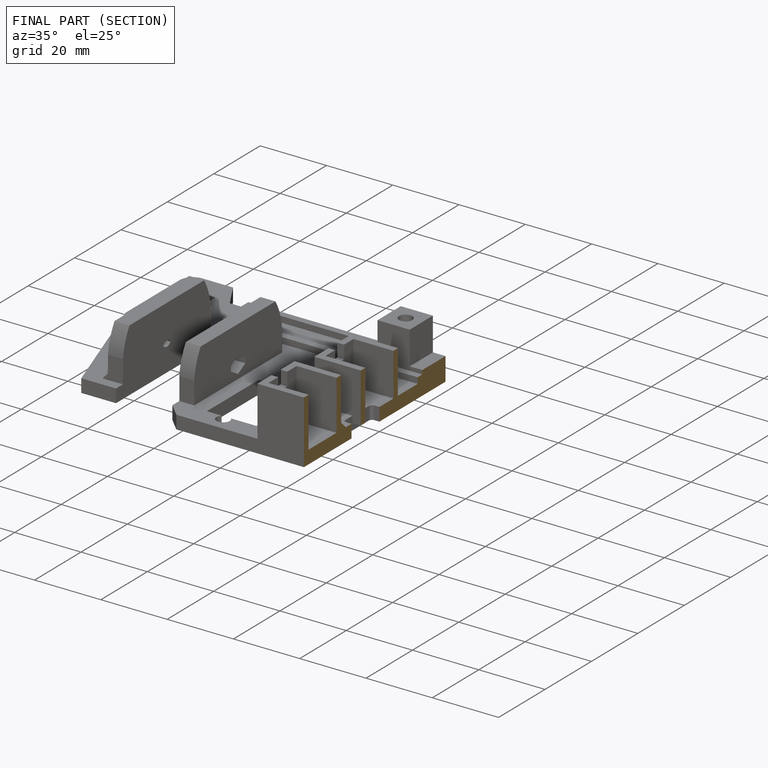
[diagram: finished part — half-section view (interior)]
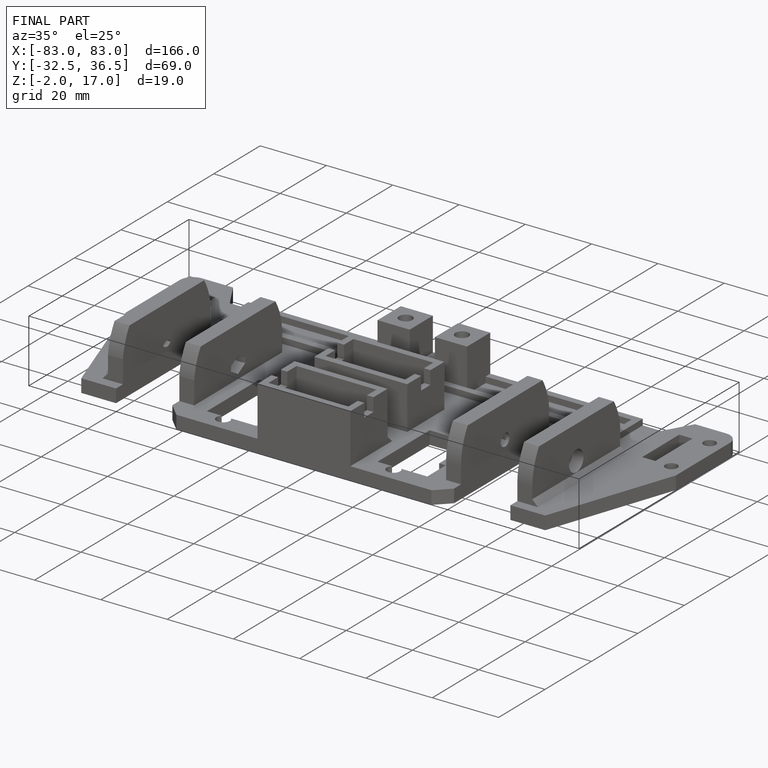
[diagram: finished part — iso view with bounding-box wireframe]
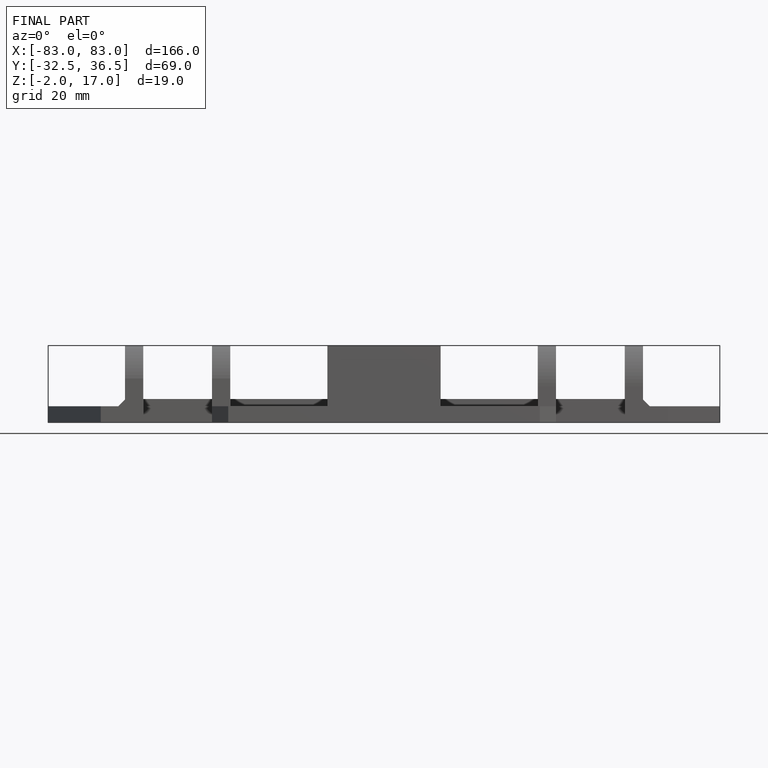
[diagram: finished part — front view with bounding-box wireframe]
